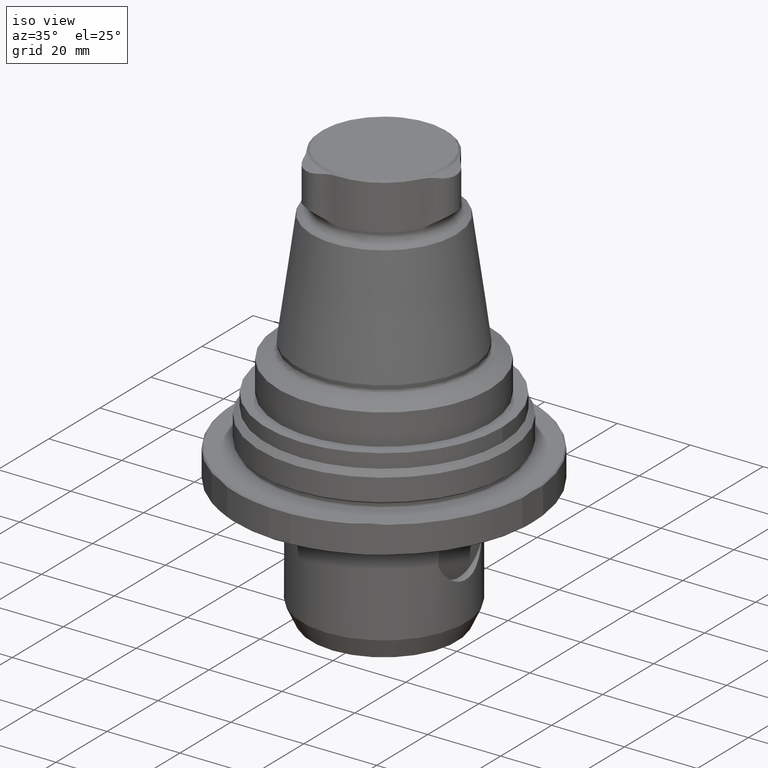
[diagram: clean part render]
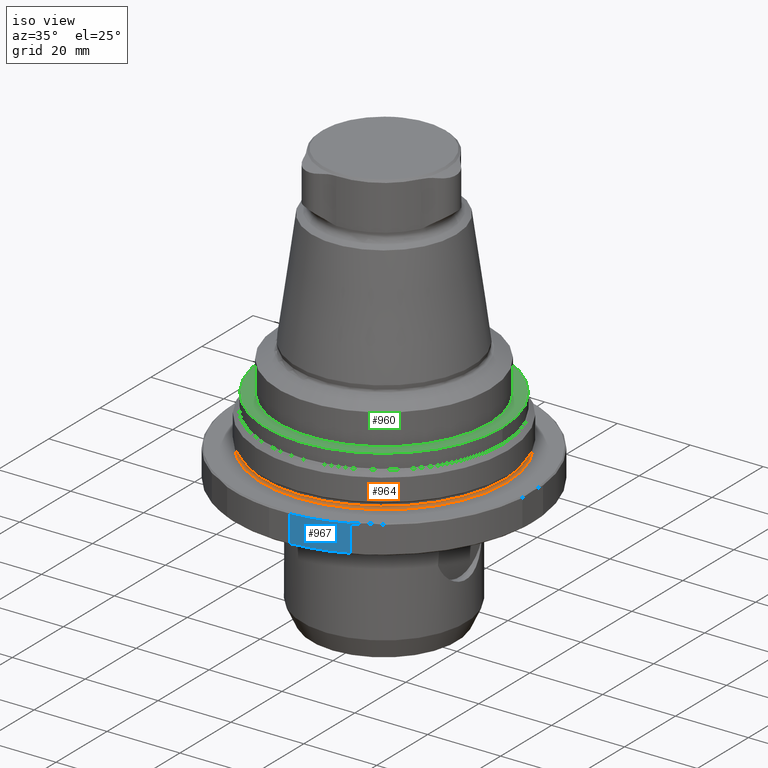
[diagram: same view with three faces highlighted in distinct colors, each labeled with its STEP entity id]
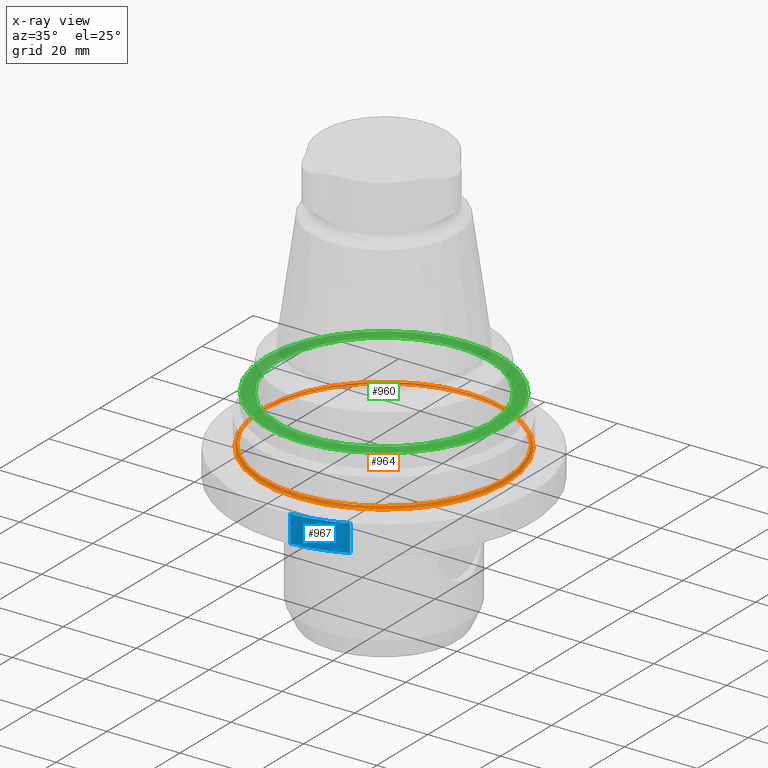
[diagram: x-ray of the same camera — body ghosted, the three highlighted faces saturated]
A machine part, iso view with three faces highlighted in distinct colors.
The next image is the same camera in x-ray (body ghosted, the three faces saturated) — at least one of them is partly hidden behind the body in this view.
Their STEP definitions:

[orange] entity #964 — the highlighted toroidal blend (fillet) surface has major radius 33.65 mm and minor (blend) radius 0.6 mm.
#24=TOROIDAL_SURFACE('',#1077,33.65,0.6);
#81=CIRCLE('',#1060,33.05);
#90=CIRCLE('',#1078,33.65);
#314=ORIENTED_EDGE('',*,*,#511,.F.);
#315=ORIENTED_EDGE('',*,*,#502,.T.);
#502=EDGE_CURVE('',#618,#618,#81,.T.);
#511=EDGE_CURVE('',#627,#627,#90,.T.);
#618=VERTEX_POINT('',#1684);
#627=VERTEX_POINT('',#1711);
#768=EDGE_LOOP('',(#314));
#769=EDGE_LOOP('',(#315));
#863=FACE_BOUND('',#768,.T.);
#864=FACE_BOUND('',#769,.T.);
#964=ADVANCED_FACE('',(#863,#864),#24,.F.);
#1060=AXIS2_PLACEMENT_3D('',#1683,#1254,#1255);
#1077=AXIS2_PLACEMENT_3D('',#1709,#1288,#1289);
#1078=AXIS2_PLACEMENT_3D('',#1710,#1290,#1291);
#1254=DIRECTION('',(-7.30126435159279E-33,-9.52839055771651E-18,-1.));
#1255=DIRECTION('',(-1.,-8.32667268468868E-17,2.89465139560709E-33));
#1288=DIRECTION('',(-7.30126435159279E-33,-9.52839055771651E-18,-1.));
#1289=DIRECTION('',(-1.,-8.32667268468868E-17,2.89465139560709E-33));
#1290=DIRECTION('',(-7.30126435159279E-33,-9.52839055771651E-18,-1.));
#1291=DIRECTION('',(-1.,-8.32667268468868E-17,2.89465139560709E-33));
#1683=CARTESIAN_POINT('',(7.88665112559661E-15,-8.57555150194491E-17,-0.400000000000001));
#1684=CARTESIAN_POINT('',(-33.05,-2.83772083730906E-15,-0.400000000000001));
#1709=CARTESIAN_POINT('',(7.88665112559661E-15,-8.57555150194491E-17,-0.400000000000001));
#1710=CARTESIAN_POINT('',(7.88665112559661E-15,-9.1472549354079E-17,-1.));
#1711=CARTESIAN_POINT('',(-33.65,-2.89339790775182E-15,-1.));

[blue] entity #967 — the highlighted cylindrical surface (partial cylindrical patch) has radius 41 mm, axis along (-0, -0, -1).
#92=CIRCLE('',#1082,41.);
#100=CIRCLE('',#1091,41.);
#127=LINE('',#1773,#157);
#128=LINE('',#1777,#158);
#157=VECTOR('',#1316,1000.);
#158=VECTOR('',#1319,1000.);
#335=ORIENTED_EDGE('',*,*,#529,.F.);
#336=ORIENTED_EDGE('',*,*,#530,.F.);
#337=ORIENTED_EDGE('',*,*,#531,.T.);
#338=ORIENTED_EDGE('',*,*,#514,.T.);
#514=EDGE_CURVE('',#631,#629,#92,.T.);
#529=EDGE_CURVE('',#645,#629,#127,.F.);
#530=EDGE_CURVE('',#646,#645,#100,.T.);
#531=EDGE_CURVE('',#646,#631,#128,.F.);
#629=VERTEX_POINT('',#1720);
#631=VERTEX_POINT('',#1723);
#645=VERTEX_POINT('',#1774);
#646=VERTEX_POINT('',#1776);
#774=EDGE_LOOP('',(#335,#336,#337,#338));
#869=FACE_BOUND('',#774,.T.);
#913=CYLINDRICAL_SURFACE('',#1090,41.);
#967=ADVANCED_FACE('',(#869),#913,.T.);
#1082=AXIS2_PLACEMENT_3D('',#1722,#1298,#1299);
#1090=AXIS2_PLACEMENT_3D('',#1772,#1314,#1315);
#1091=AXIS2_PLACEMENT_3D('',#1775,#1317,#1318);
#1298=DIRECTION('',(-7.30126435159279E-33,-9.52839055771651E-18,-1.));
#1299=DIRECTION('',(-1.,-8.32667268468868E-17,2.89465139560709E-33));
#1314=DIRECTION('',(-7.30126435159279E-33,-9.52839055771651E-18,-1.));
#1315=DIRECTION('',(-1.,-8.32667268468868E-17,2.89465139560709E-33));
#1316=DIRECTION('',(-7.30126435159279E-33,-9.52839055771651E-18,-1.));
#1317=DIRECTION('',(-7.30126435159279E-33,-9.52839055771651E-18,-1.));
#1318=DIRECTION('',(-1.,-8.32667268468868E-17,2.89465139560709E-33));
#1319=DIRECTION('',(-7.30126435159279E-33,-9.52839055771651E-18,-1.));
#1720=CARTESIAN_POINT('',(2.86181760425088,-40.9,-1.29999999999999));
#1722=CARTESIAN_POINT('',(7.88665112559661E-15,-9.43310665213939E-17,-1.29999999999999));
#1723=CARTESIAN_POINT('',(16.8971440223727,-37.3562113160208,-1.29999999999999));
#1772=CARTESIAN_POINT('',(7.88665112559661E-15,-9.1472549354079E-17,-1.));
#1773=CARTESIAN_POINT('',(2.86181760425088,-40.9,-1.));
#1774=CARTESIAN_POINT('',(2.86181760425084,-40.9,-8.7000000000001));
#1775=CARTESIAN_POINT('',(7.88665112559661E-15,-1.64841156648496E-16,-8.7));
#1776=CARTESIAN_POINT('',(16.8971440223727,-37.3562113160207,-8.7));
#1777=CARTESIAN_POINT('',(16.8971440223727,-37.3562113160208,-1.));

[green] entity #960 — the highlighted planar face has unit normal (0, -0, 1).
#42=PLANE('',#1070);
#80=CIRCLE('',#1058,29.);
#87=CIRCLE('',#1071,32.48);
#306=ORIENTED_EDGE('',*,*,#508,.F.);
#307=ORIENTED_EDGE('',*,*,#501,.T.);
#501=EDGE_CURVE('',#617,#617,#80,.T.);
#508=EDGE_CURVE('',#624,#624,#87,.T.);
#617=VERTEX_POINT('',#1681);
#624=VERTEX_POINT('',#1701);
#760=EDGE_LOOP('',(#306));
#761=EDGE_LOOP('',(#307));
#855=FACE_BOUND('',#760,.T.);
#856=FACE_BOUND('',#761,.T.);
#960=ADVANCED_FACE('',(#855,#856),#42,.T.);
#1058=AXIS2_PLACEMENT_3D('',#1680,#1250,#1251);
#1070=AXIS2_PLACEMENT_3D('',#1699,#1274,#1275);
#1071=AXIS2_PLACEMENT_3D('',#1700,#1276,#1277);
#1250=DIRECTION('',(1.22461692971323E-16,-7.49836836562635E-33,-1.));
#1251=DIRECTION('',(-1.,6.12303176911189E-17,-1.22461692971323E-16));
#1274=DIRECTION('',(5.2112629750951E-18,-6.90472121537616E-17,1.));
#1275=DIRECTION('',(2.8327492261615E-16,1.,6.90472121537612E-17));
#1276=DIRECTION('',(-5.2112629750951E-18,6.90472121537616E-17,-1.));
#1277=DIRECTION('',(-1.,6.12303176911188E-17,1.08491142720197E-17));
#1680=CARTESIAN_POINT('',(7.4139489907273E-15,-4.53958452047983E-31,12.46));
#1681=CARTESIAN_POINT('',(-29.,1.77567921304245E-15,12.46));
#1699=CARTESIAN_POINT('',(7.41400110335705E-15,-9.52360330964909E-18,12.46));
#1700=CARTESIAN_POINT('',(7.41400110335705E-15,-9.52360330964909E-18,12.46));
#1701=CARTESIAN_POINT('',(-32.48,1.97923711529789E-15,12.46));